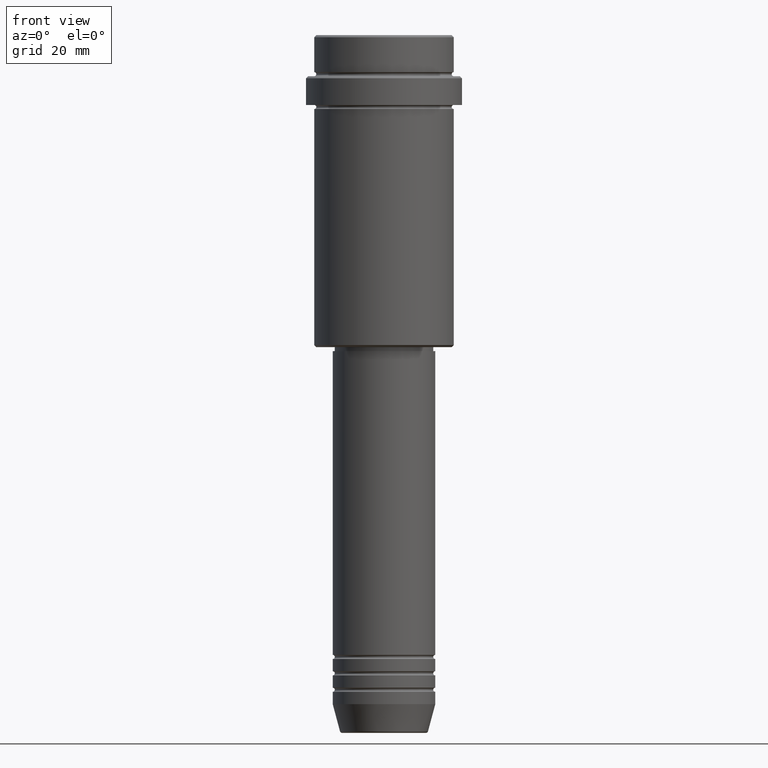
[diagram: clean part render]
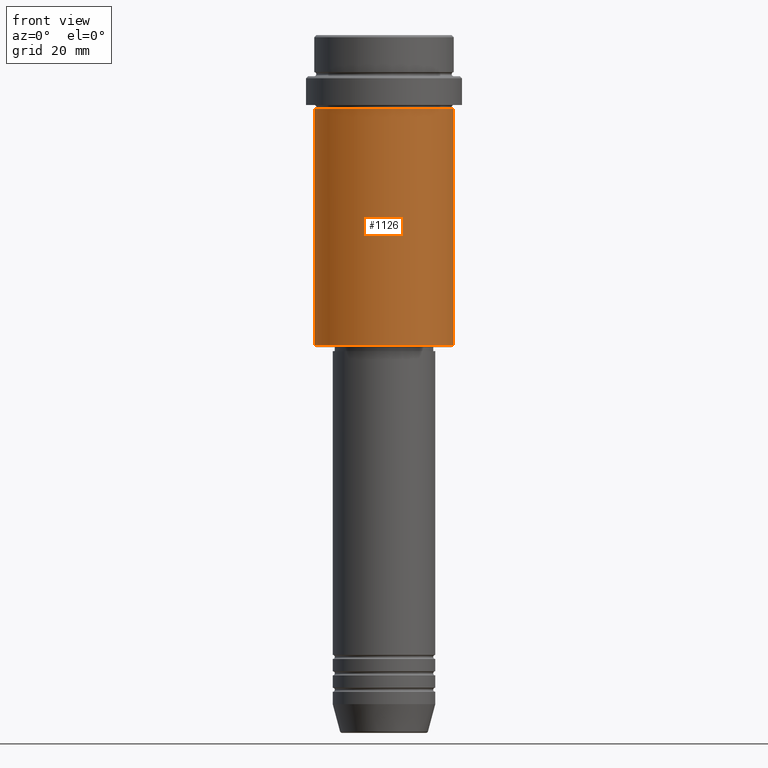
[diagram: same view with one face highlighted and labeled with its STEP entity id]
A machine part, front view. The second image highlights one B-rep face of the part: STEP entity #1126.
In plain terms, the highlighted cylindrical surface (partial cylindrical patch) has radius 17 mm, axis along (-0, -0, 1).
Its self-contained STEP definition (entity closure, byte-faithful):
#105 = CARTESIAN_POINT ( 'NONE',  ( 0.000000000000000000, 0.000000000000000000, -18.00000000000000711 ) ) ;
#117 = CARTESIAN_POINT ( 'NONE',  ( -16.99999999999998934, 2.081899558550499491E-15, 0.000000000000000000 ) ) ;
#154 = EDGE_CURVE ( 'NONE', #929, #1354, #1295, .T. ) ;
#162 = DIRECTION ( 'NONE',  ( -0.000000000000000000, -0.000000000000000000, 1.000000000000000000 ) ) ;
#205 = DIRECTION ( 'NONE',  ( 1.000000000000000000, 0.000000000000000000, 0.000000000000000000 ) ) ;
#250 = AXIS2_PLACEMENT_3D ( 'NONE', #105, #528, #766 ) ;
#313 = CARTESIAN_POINT ( 'NONE',  ( 0.000000000000000000, 0.000000000000000000, 0.000000000000000000 ) ) ;
#388 = LINE ( 'NONE', #922, #546 ) ;
#454 = AXIS2_PLACEMENT_3D ( 'NONE', #737, #865, #1176 ) ;
#458 = VECTOR ( 'NONE', #561, 1000.000000000000000 ) ;
#517 = CARTESIAN_POINT ( 'NONE',  ( 16.99999999999998934, 0.000000000000000000, -75.49999999999998579 ) ) ;
#525 = CYLINDRICAL_SURFACE ( 'NONE', #881, 16.99999999999998934 ) ;
#528 = DIRECTION ( 'NONE',  ( -0.000000000000000000, -0.000000000000000000, 1.000000000000000000 ) ) ;
#531 = ORIENTED_EDGE ( 'NONE', *, *, #758, .F. ) ;
#546 = VECTOR ( 'NONE', #162, 1000.000000000000000 ) ;
#561 = DIRECTION ( 'NONE',  ( -0.000000000000000000, -0.000000000000000000, 1.000000000000000000 ) ) ;
#629 = FACE_OUTER_BOUND ( 'NONE', #1269, .T. ) ;
#643 = DIRECTION ( 'NONE',  ( -0.000000000000000000, -0.000000000000000000, 1.000000000000000000 ) ) ;
#645 = ORIENTED_EDGE ( 'NONE', *, *, #154, .T. ) ;
#662 = EDGE_CURVE ( 'NONE', #1354, #1081, #388, .T. ) ;
#705 = ORIENTED_EDGE ( 'NONE', *, *, #941, .F. ) ;
#737 = CARTESIAN_POINT ( 'NONE',  ( 0.000000000000000000, 0.000000000000000000, -75.49999999999998579 ) ) ;
#758 = EDGE_CURVE ( 'NONE', #929, #973, #995, .T. ) ;
#766 = DIRECTION ( 'NONE',  ( 1.000000000000000000, 0.000000000000000000, 0.000000000000000000 ) ) ;
#823 = CARTESIAN_POINT ( 'NONE',  ( -16.99999999999997868, 2.081899558550498702E-15, -18.00000000000000711 ) ) ;
#865 = DIRECTION ( 'NONE',  ( -0.000000000000000000, -0.000000000000000000, 1.000000000000000000 ) ) ;
#881 = AXIS2_PLACEMENT_3D ( 'NONE', #313, #643, #205 ) ;
#922 = CARTESIAN_POINT ( 'NONE',  ( 16.99999999999998934, 0.000000000000000000, 0.000000000000000000 ) ) ;
#929 = VERTEX_POINT ( 'NONE', #1088 ) ;
#941 = EDGE_CURVE ( 'NONE', #973, #1081, #1059, .T. ) ;
#973 = VERTEX_POINT ( 'NONE', #823 ) ;
#995 = LINE ( 'NONE', #117, #458 ) ;
#1059 = CIRCLE ( 'NONE', #250, 16.99999999999997868 ) ;
#1081 = VERTEX_POINT ( 'NONE', #1085 ) ;
#1085 = CARTESIAN_POINT ( 'NONE',  ( 16.99999999999997868, 0.000000000000000000, -18.00000000000000711 ) ) ;
#1088 = CARTESIAN_POINT ( 'NONE',  ( -16.99999999999998934, 2.081899558550499491E-15, -75.49999999999998579 ) ) ;
#1126 = ADVANCED_FACE ( 'NONE', ( #629 ), #525, .T. ) ;
#1176 = DIRECTION ( 'NONE',  ( -1.000000000000000000, 0.000000000000000000, 0.000000000000000000 ) ) ;
#1269 = EDGE_LOOP ( 'NONE', ( #531, #645, #1334, #705 ) ) ;
#1295 = CIRCLE ( 'NONE', #454, 16.99999999999998934 ) ;
#1334 = ORIENTED_EDGE ( 'NONE', *, *, #662, .T. ) ;
#1354 = VERTEX_POINT ( 'NONE', #517 ) ;